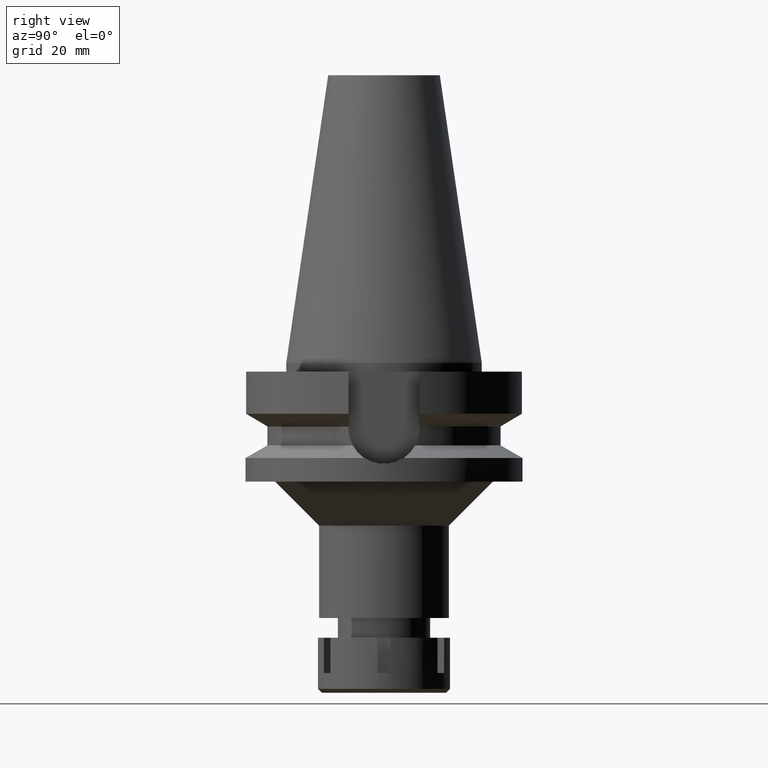
[diagram: clean part render]
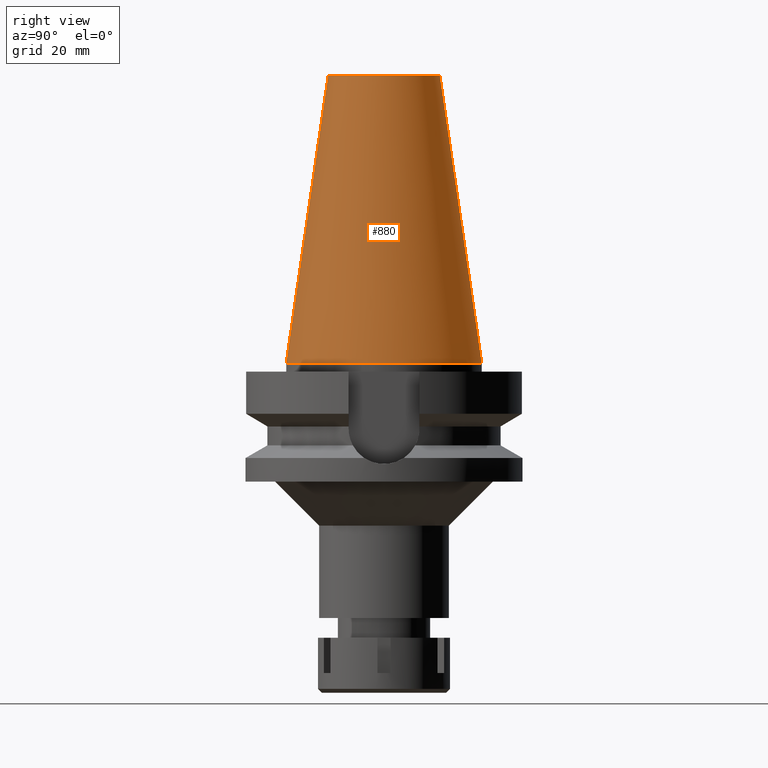
[diagram: same view with one face highlighted and labeled with its STEP entity id]
A machine part, right view. The second image highlights one B-rep face of the part: STEP entity #880.
In plain terms, the highlighted conical surface has half-angle 8.297 deg.
Its self-contained STEP definition (entity closure, byte-faithful):
#104 = ORIENTED_EDGE ( 'NONE', *, *, #1709, .F. ) ;
#284 = DIRECTION ( 'NONE',  ( 0.0000000000000000000, 0.0000000000000000000, -1.000000000000000000 ) ) ;
#304 = CARTESIAN_POINT ( 'NONE',  ( 0.0000000000000000000, 1.625106302469000024E-14, 32.70000000000000284 ) ) ;
#385 = CARTESIAN_POINT ( 'NONE',  ( 0.0000000000000000000, -12.68766899429999917, 65.40000000000000568 ) ) ;
#413 = VECTOR ( 'NONE', #3175, 1000.000000000000114 ) ;
#474 = ORIENTED_EDGE ( 'NONE', *, *, #2616, .F. ) ;
#618 = DIRECTION ( 'NONE',  ( 0.0000000000000000000, -1.000000000000000000, 0.0000000000000000000 ) ) ;
#875 = AXIS2_PLACEMENT_3D ( 'NONE', #2442, #2151, #1905 ) ;
#880 = ADVANCED_FACE ( 'NONE', ( #896 ), #3005, .T. ) ;
#896 = FACE_OUTER_BOUND ( 'NONE', #2961, .T. ) ;
#1003 = CARTESIAN_POINT ( 'NONE',  ( 0.0000000000000000000, -12.68766899429999917, 65.40000000000000568 ) ) ;
#1267 = LINE ( 'NONE', #1831, #2068 ) ;
#1493 = AXIS2_PLACEMENT_3D ( 'NONE', #304, #284, #618 ) ;
#1539 = CARTESIAN_POINT ( 'NONE',  ( 0.0000000000000000000, -22.22500000000000142, 2.842170943039999687E-14 ) ) ;
#1586 = AXIS2_PLACEMENT_3D ( 'NONE', #2449, #2757, #3019 ) ;
#1709 = EDGE_CURVE ( 'NONE', #2256, #2017, #3634, .T. ) ;
#1831 = CARTESIAN_POINT ( 'NONE',  ( 0.0000000000000000000, 12.68766899429999917, 65.40000000000000568 ) ) ;
#1839 = EDGE_CURVE ( 'NONE', #2133, #2087, #2981, .T. ) ;
#1905 = DIRECTION ( 'NONE',  ( 0.0000000000000000000, 1.000000000000000000, 0.0000000000000000000 ) ) ;
#2017 = VERTEX_POINT ( 'NONE', #1539 ) ;
#2068 = VECTOR ( 'NONE', #2385, 1000.000000000000114 ) ;
#2087 = VERTEX_POINT ( 'NONE', #385 ) ;
#2128 = LINE ( 'NONE', #1003, #413 ) ;
#2133 = VERTEX_POINT ( 'NONE', #3599 ) ;
#2151 = DIRECTION ( 'NONE',  ( 0.0000000000000000000, 0.0000000000000000000, -1.000000000000000000 ) ) ;
#2256 = VERTEX_POINT ( 'NONE', #3303 ) ;
#2385 = DIRECTION ( 'NONE',  ( 0.0000000000000000000, 0.1443043893539925626, -0.9895333461855498891 ) ) ;
#2442 = CARTESIAN_POINT ( 'NONE',  ( 0.0000000000000000000, 1.625106302469000024E-14, 65.40000000000000568 ) ) ;
#2449 = CARTESIAN_POINT ( 'NONE',  ( 0.0000000000000000000, 1.625106302469000024E-14, 2.842170943039999687E-14 ) ) ;
#2594 = EDGE_CURVE ( 'NONE', #2087, #2017, #2128, .T. ) ;
#2616 = EDGE_CURVE ( 'NONE', #2133, #2256, #1267, .T. ) ;
#2757 = DIRECTION ( 'NONE',  ( 0.0000000000000000000, 0.0000000000000000000, -1.000000000000000000 ) ) ;
#2961 = EDGE_LOOP ( 'NONE', ( #2962, #3110, #104, #474 ) ) ;
#2962 = ORIENTED_EDGE ( 'NONE', *, *, #1839, .T. ) ;
#2981 = CIRCLE ( 'NONE', #875, 12.68766899429999917 ) ;
#3005 = CONICAL_SURFACE ( 'NONE', #1493, 17.45633449714999941, 0.1448099680379422438 ) ;
#3019 = DIRECTION ( 'NONE',  ( 0.0000000000000000000, 1.000000000000000000, 0.0000000000000000000 ) ) ;
#3110 = ORIENTED_EDGE ( 'NONE', *, *, #2594, .T. ) ;
#3175 = DIRECTION ( 'NONE',  ( 0.0000000000000000000, -0.1443043893539925626, -0.9895333461855498891 ) ) ;
#3303 = CARTESIAN_POINT ( 'NONE',  ( 0.0000000000000000000, 22.22500000000000142, 7.105427357600999334E-14 ) ) ;
#3599 = CARTESIAN_POINT ( 'NONE',  ( 0.0000000000000000000, 12.68766899429999917, 65.40000000000000568 ) ) ;
#3634 = CIRCLE ( 'NONE', #1586, 22.22500000000000142 ) ;